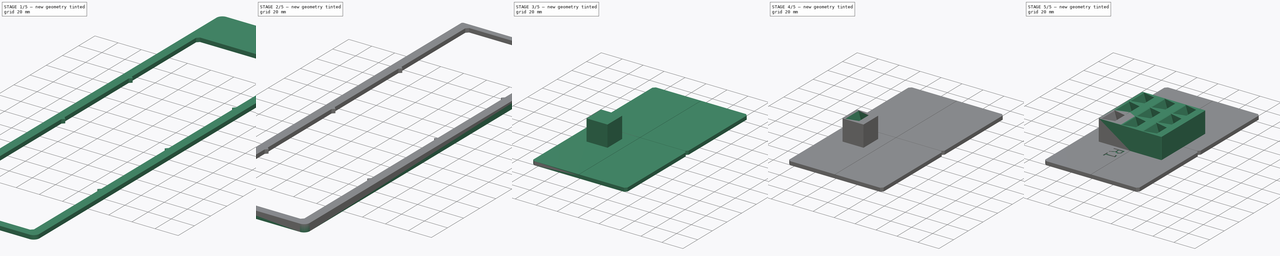
[diagram: build sequence overview — one tinted view per stage of 5, left to right]
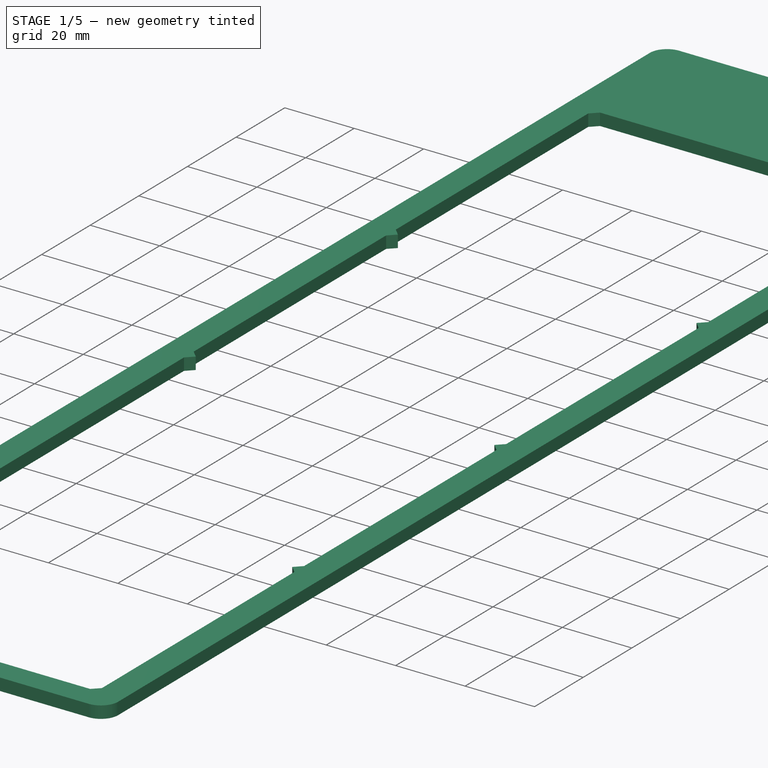
[diagram: stage 1 of 5 — iso view after this stage's code; geometry added in this stage tinted green]
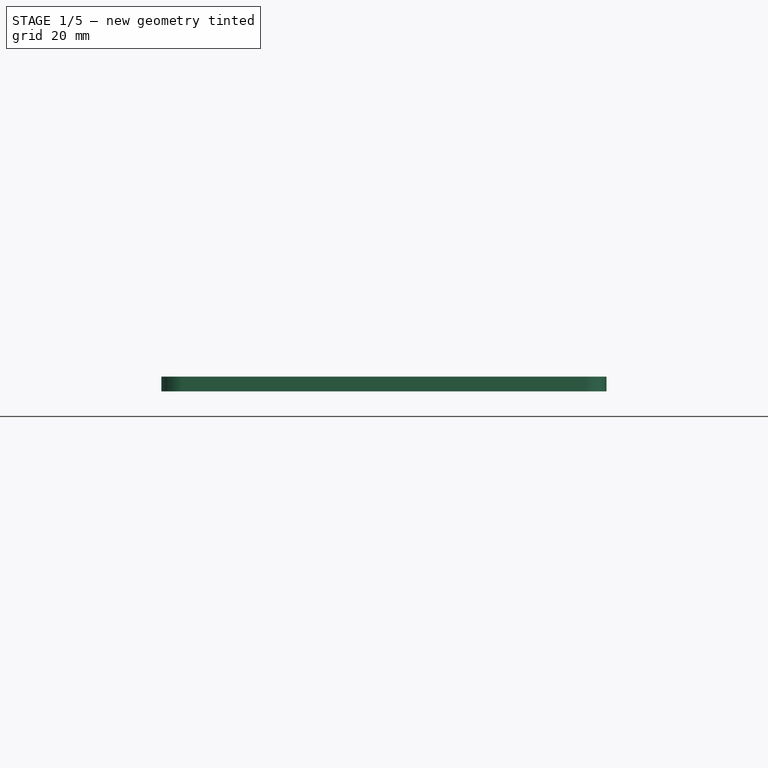
[diagram: stage 1 of 5 — front view after this stage's code; geometry added in this stage tinted green]
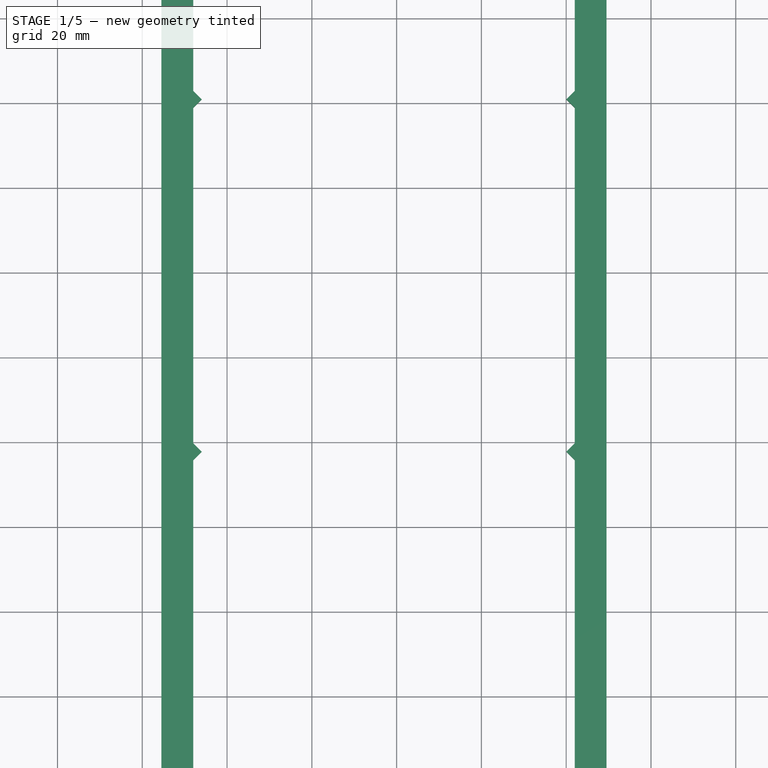
[diagram: stage 1 of 5 — top view after this stage's code; geometry added in this stage tinted green]
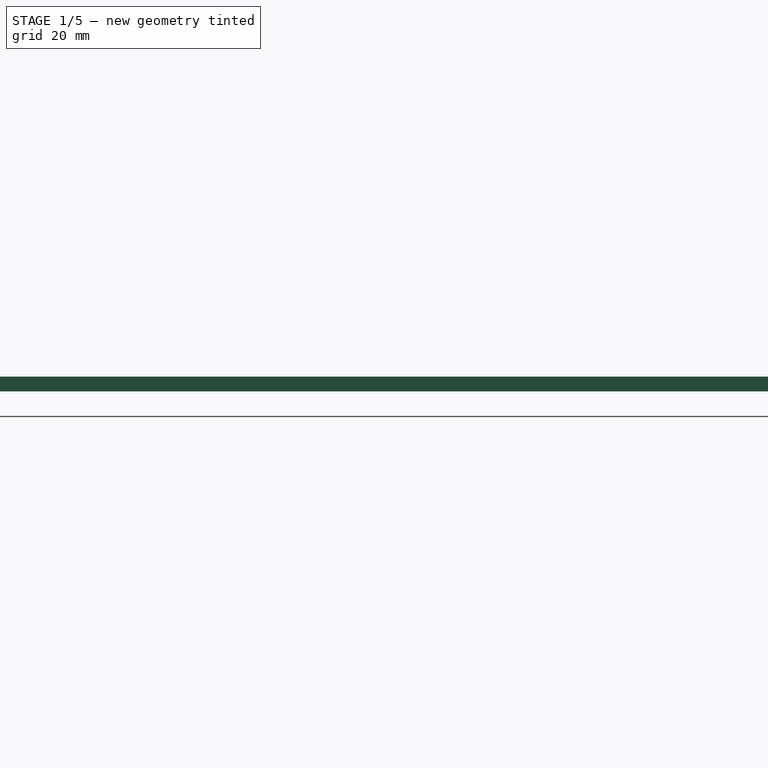
[diagram: stage 1 of 5 — right view after this stage's code; geometry added in this stage tinted green]
FCSTD DOCUMENT  (FreeCAD 1.1R44227 +568 (Git))
Label: MX-Front-print-rig
License: All rights reserved
LicenseURL: https://en.wikipedia.org/wiki/All_rights_reserved
objects: Sketcher::SketchObject×10, PartDesign::Pocket×5, PartDesign::Pad×4, PartDesign::Fillet×3, App::Point×2, PartDesign::Body×2, PartDesign::SubShapeBinder×1, Part::DatumPlane×1, Spreadsheet::Sheet×1, PartDesign::AdditiveLoft×1, PartDesign::Chamfer×1, PartDesign::LinearPattern×1, Part::Part2DObjectPython×1
note: 68 computed .brp shape members not serialized (recipe doc carries the construction recipe); baked Part::Feature solids carry a one-line shape summary decoded from their .brp

FEATURE [Sketcher::SketchObject] Sketch011
  ArcFitTolerance = 1e-06
  ExternalTypes = [0,0,0]
  FullyConstrained = true
  MakeInternals = false
  MapMode = 5
  Placement = pos=(0,0,-2) rot=(1,0,0;3.14159rad)
  _ExternalGeoVersion = 0
  sketch-geometry (4):
    g0: LineSegment StartX=24.522 StartY=-308.965 StartZ=0 EndX=24.522 EndY=-342.965 EndZ=0
    g1: LineSegment StartX=24.522 StartY=-342.965 StartZ=0 EndX=129.522 EndY=-342.965 EndZ=0
    g2: LineSegment StartX=129.522 StartY=-342.965 StartZ=0 EndX=129.522 EndY=-308.965 EndZ=0
    g3: LineSegment StartX=24.522 StartY=-308.965 StartZ=0 EndX=129.522 EndY=-308.965 EndZ=0
  constraints (10):
    c: Vertical(g0)
    c: Coincident(g0,g1)
    c: Vertical(g2)
    c: Coincident(g2,g-3)
    c: Coincident(g0,g-3)
    c: Horizontal(g0,g2)
    c: DistanceY(g2,g-4) = 5
    c: Coincident(g0,g3)
    c: Coincident(g1,g2)
    c: Coincident(g2,g3)
FEATURE [Sketcher::SketchObject] Sketch009
  ArcFitTolerance = 1e-06
  ExternalTypes = [0]
  FullyConstrained = false
  MakeInternals = false
  MapMode = 5
  _ExternalGeoVersion = 0
  sketch-geometry (4):
    g0: LineSegment StartX=24.522 StartY=342.965 StartZ=0 EndX=24.522 EndY=-35.535 EndZ=0
    g1: LineSegment StartX=24.522 StartY=-35.535 StartZ=0 EndX=129.522 EndY=-35.535 EndZ=0
    g2: LineSegment StartX=129.522 StartY=-35.535 StartZ=0 EndX=129.522 EndY=342.965 EndZ=0
    g3: LineSegment StartX=129.522 StartY=342.965 StartZ=0 EndX=24.522 EndY=342.965 EndZ=0
  constraints (10):
    c: Coincident(g0,g1)
    c: Coincident(g1,g2)
    c: Coincident(g2,g3)
    c: Coincident(g3,g0)
    c: Vertical(g0)
    c: Vertical(g2)
    c: Horizontal(g1)
    c: Horizontal(g3)
    c: Distance(g0,g2) = 105
    c: Distance(g1,g3) = 378.5
FEATURE [PartDesign::Pad] Pad
  Direction = (0,0,1)
  Length = 1.5
  Length2 = 2
  Profile = -> Sketch009
  ReferenceAxis = -> Sketch009 [N_Axis]
  SideType = 1
  Suppressed = false
  Type = 0
  Type2 = 0
FEATURE [Sketcher::SketchObject] Sketch010
  ArcFitTolerance = 1e-06
  AttachmentSupport = -> [Pad]
  ExternalGeometry = -> [Pad]
  ExternalTypes = [0,0,0,0]
  FullyConstrained = true
  MakeInternals = false
  MapMode = 5
  Placement = pos=(0,0,1.5) rot=(0,0,1;0rad)
  _ExternalGeoVersion = 0
  sketch-geometry (35):
    g0: LineSegment StartX=32.022 StartY=301.965 StartZ=0 EndX=32.022 EndY=222.84 EndZ=0
    g1: LineSegment StartX=34.022 StartY=-28.535 StartZ=0 EndX=120.022 EndY=-28.535 EndZ=0
    g2: LineSegment StartX=120.022 StartY=-28.535 StartZ=0 EndX=122.022 EndY=-26.535 EndZ=0
    g3: LineSegment StartX=120.022 StartY=303.965 StartZ=0 EndX=34.022 EndY=303.965 EndZ=0
    g4: GeomPoint [constr] X=77.022 Y=-35.535 Z=0
    g5: GeomPoint [constr] X=77.022 Y=342.965 Z=0
    g6: LineSegment [constr] StartX=77.022 StartY=342.965 StartZ=0 EndX=77.022 EndY=-35.535 EndZ=0
    g7: LineSegment StartX=32.022 StartY=222.84 StartZ=0 EndX=34.022 EndY=220.84 EndZ=0
    g8: LineSegment StartX=34.022 StartY=220.84 StartZ=0 EndX=32.022 EndY=218.84 EndZ=0
    g9: LineSegment StartX=32.022 StartY=135.715 StartZ=0 EndX=34.022 EndY=137.715 EndZ=0
    g10: LineSegment StartX=34.022 StartY=137.715 StartZ=0 EndX=32.022 EndY=139.715 EndZ=0
    g11: LineSegment StartX=32.022 StartY=56.59 StartZ=0 EndX=34.022 EndY=54.59 EndZ=0
    g12: LineSegment StartX=34.022 StartY=54.59 StartZ=0 EndX=32.022 EndY=52.59 EndZ=0
    g13: LineSegment StartX=122.022 StartY=52.59 StartZ=0 EndX=120.022 EndY=54.59 EndZ=0
    g14: LineSegment StartX=120.022 StartY=54.59 StartZ=0 EndX=122.022 EndY=56.59 EndZ=0
    g15: LineSegment StartX=122.022 StartY=139.715 StartZ=0 EndX=120.022 EndY=137.715 EndZ=0
    g16: LineSegment StartX=120.022 StartY=137.715 StartZ=0 EndX=122.022 EndY=135.715 EndZ=0
    g17: LineSegment StartX=122.022 StartY=222.84 StartZ=0 EndX=122.022 EndY=301.965 EndZ=0
    g18: LineSegment StartX=120.022 StartY=220.84 StartZ=0 EndX=122.022 EndY=222.84 EndZ=0
    g19: LineSegment StartX=122.022 StartY=218.84 StartZ=0 EndX=120.022 EndY=220.84 EndZ=0
    g20: LineSegment StartX=34.022 StartY=303.965 StartZ=0 EndX=32.022 EndY=301.965 EndZ=0
    g21: LineSegment StartX=122.022 StartY=301.965 StartZ=0 EndX=120.022 EndY=303.965 EndZ=0
    g22: LineSegment [constr] StartX=34.022 StartY=220.84 StartZ=0 EndX=120.022 EndY=220.84 EndZ=0
    g23: LineSegment [constr] StartX=32.022 StartY=135.715 StartZ=0 EndX=32.022 EndY=139.715 EndZ=0
    g24: LineSegment [constr] StartX=32.022 StartY=222.84 StartZ=0 EndX=32.022 EndY=218.84 EndZ=0
    g25: LineSegment [constr] StartX=32.022 StartY=56.59 StartZ=0 EndX=32.022 EndY=52.59 EndZ=0
    g26: LineSegment [constr] StartX=34.022 StartY=54.59 StartZ=0 EndX=120.022 EndY=54.59 EndZ=0
    g27: LineSegment StartX=32.022 StartY=-26.535 StartZ=0 EndX=34.022 EndY=-28.535 EndZ=0
    g28: LineSegment [constr] StartX=34.022 StartY=137.715 StartZ=0 EndX=120.022 EndY=137.715 EndZ=0
    g29: LineSegment StartX=32.022 StartY=218.84 StartZ=0 EndX=32.022 EndY=139.715 EndZ=0
    g30: LineSegment StartX=122.022 StartY=218.84 StartZ=0 EndX=122.022 EndY=139.715 EndZ=0
    g31: LineSegment StartX=32.022 StartY=135.715 StartZ=0 EndX=32.022 EndY=56.59 EndZ=0
    g32: LineSegment StartX=122.022 StartY=135.715 StartZ=0 EndX=122.022 EndY=56.59 EndZ=0
    g33: LineSegment StartX=32.022 StartY=52.59 StartZ=0 EndX=32.022 EndY=-26.535 EndZ=0
    g34: LineSegment StartX=122.022 StartY=52.59 StartZ=0 EndX=122.022 EndY=-26.535 EndZ=0
  constraints (87):
    c: Coincident(g27,g1)
    c: Coincident(g1,g2)
    c: Coincident(g21,g3)
    c: Coincident(g20,g0)
    c: DistanceY(g2,g21) = 332.5
    c: Symmetric(g-4,g-4,g4)
    c: Symmetric(g-3,g-3,g5)
    c: Coincident(g6,g5)
    c: Coincident(g6,g4)
    c: Symmetric(g27,g1,g6)
    c: Vertical(g0)
    c: Coincident(g0,g7)
    c: Coincident(g7,g8)
    c: Coincident(g9,g10)
    c: Coincident(g11,g12)
    c: Coincident(g13,g14)
    c: Coincident(g15,g16)
    c: Coincident(g18,g17)
    c: Coincident(g19,g18)
    c: Vertical(g16,g15)
    c: Vertical(g0,g8)
    c: Vertical(g17,g19)
    c: Vertical(g11,g12)
    c: Vertical(g14,g13)
    c: Horizontal(g9,g16)
    c: Horizontal(g15,g10)
    c: Vertical(g9,g11)
    c: Vertical(g15,g13)
    c: Vertical(g18,g15)
    c: Vertical(g7,g9)
    c: Horizontal(g0,g17)
    c: Horizontal(g8,g19)
    c: Horizontal(g11,g14)
    c: Horizontal(g12,g13)
    c: DistanceX(g9,g9) = 2
    c: Symmetric(g9,g15,g6)
    c: Coincident(g3,g20)
    c: Angle(g20,g0) = 0.785398
    c: Vertical(g9,g3)
    c: Vertical(g17)
    c: Coincident(g17,g21)
    c: Symmetric(g3,g3,g6)
    c: Horizontal(g17,g0)
    c: Coincident(g22,g7)
    c: Coincident(g22,g18)
    c: Symmetric(g0,g8,g22)
    c: Coincident(g23,g9)
    c: Coincident(g23,g10)
    c: Coincident(g24,g0)
    c: Coincident(g24,g8)
    c: Equal(g24,g23)
    c: Coincident(g25,g11)
    c: Coincident(g25,g12)
    c: Coincident(g26,g11)
    c: Coincident(g26,g13)
    c: Equal(g25,g23)
    c: DistanceX(g27,g2) = 90
    c: Symmetric(g27,g2,g6)
    c: Vertical(g11,g1)
    c: Coincident(g28,g9)
    c: Coincident(g28,g15)
    c: Symmetric(g9,g10,g28)
    c: DistanceY(g-4,g1) = 7
    c: Coincident(g29,g8)
    c: Coincident(g29,g10)
    c: Vertical(g29)
    c: Coincident(g30,g19)
    c: Coincident(g30,g15)
    c: Vertical(g30)
    c: Angle(g29,g10) = 0.785398
    c: Equal(g0,g29)
    c: Coincident(g31,g9)
    c: Coincident(g31,g11)
    c: Vertical(g31)
    c: Coincident(g32,g16)
    c: Coincident(g32,g14)
    c: Vertical(g32)
    c: Symmetric(g11,g12,g26)
    c: Equal(g29,g31)
    c: Coincident(g33,g12)
    c: Coincident(g33,g27)
    c: Vertical(g33)
    c: Coincident(g34,g13)
    c: Coincident(g34,g2)
    c: Vertical(g34)
    c: Equal(g31,g33)
    c: Angle(g33,g27) = 0.785398
FEATURE [PartDesign::Pocket] Pocket019
  BaseFeature = -> Pad
  Direction = (0,0,-1)
  Length = 5
  Length2 = 5
  Profile = -> Sketch010
  ReferenceAxis = -> Sketch010 [N_Axis]
  SideType = 0
  Suppressed = false
  Type = 1
  Type2 = 0
FEATURE [PartDesign::Fillet] Fillet
  Base = -> Pocket019 [Edge8,Edge2,Edge1,Edge5]
  BaseFeature = -> Pocket019
  Radius = 5
  SupportTransform = false
  Suppressed = false
  UseAllEdges = false
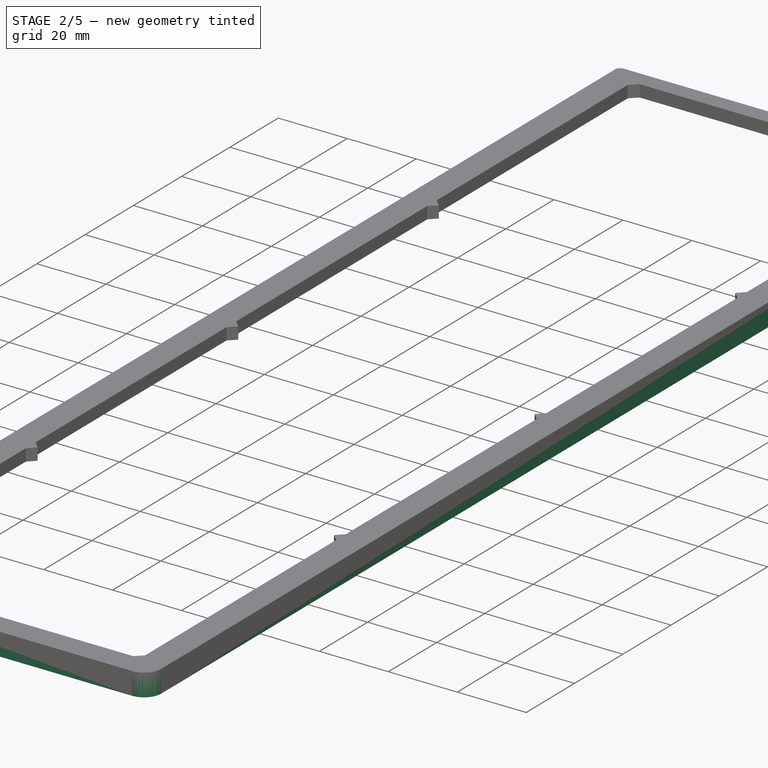
[diagram: stage 2 of 5 — iso view after this stage's code; geometry added in this stage tinted green]
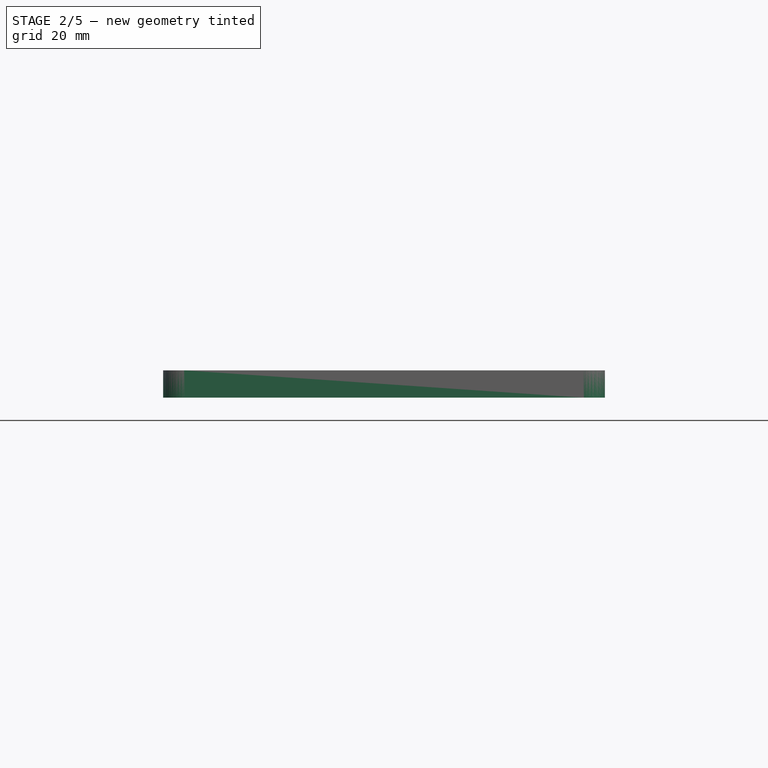
[diagram: stage 2 of 5 — front view after this stage's code; geometry added in this stage tinted green]
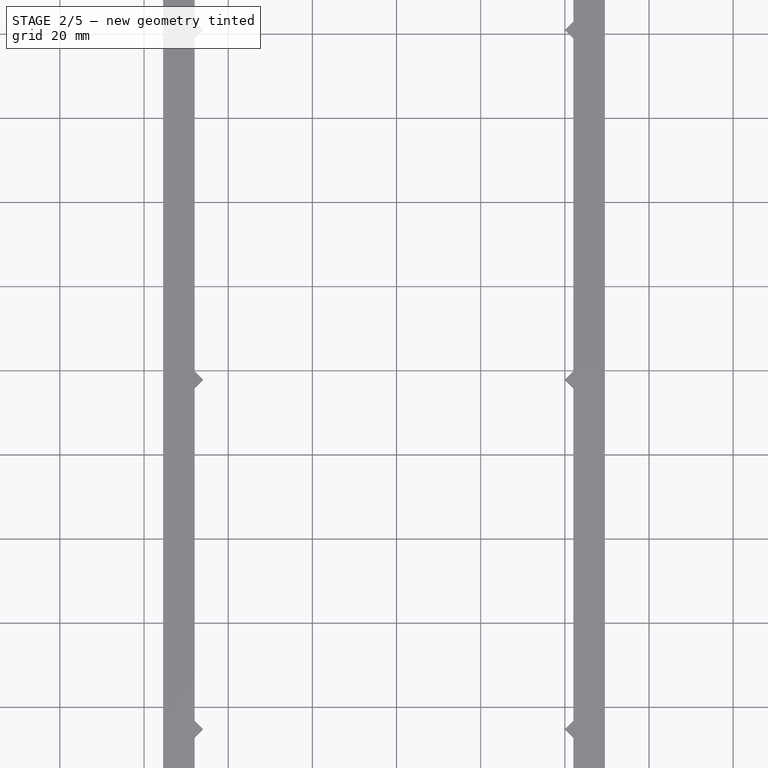
[diagram: stage 2 of 5 — top view after this stage's code; geometry added in this stage tinted green]
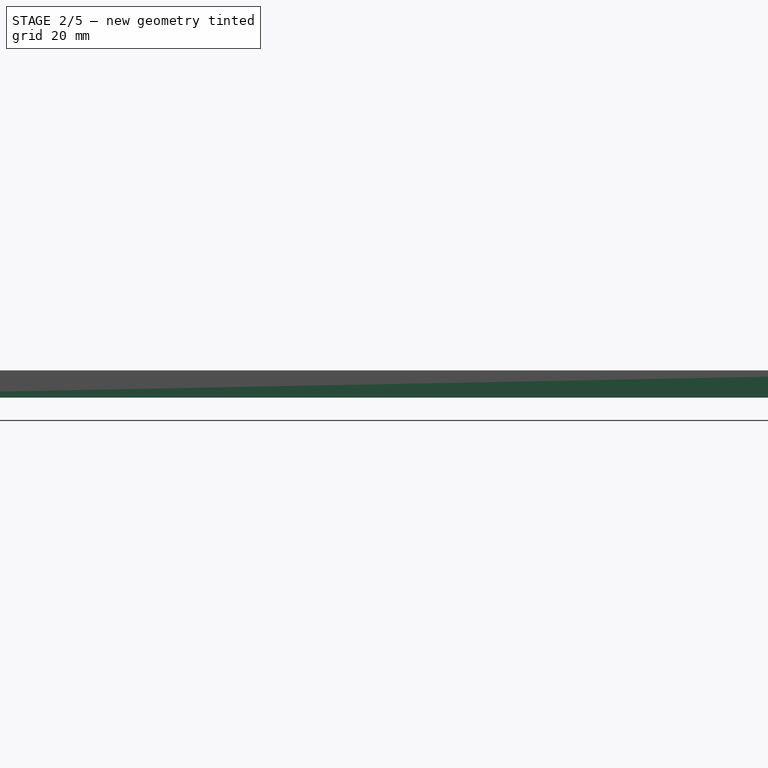
[diagram: stage 2 of 5 — right view after this stage's code; geometry added in this stage tinted green]
FEATURE [Sketcher::SketchObject] Sketch028
  ArcFitTolerance = 1e-06
  AttachmentSupport = -> [Fillet]
  ExternalGeometry = -> [Fillet]
  ExternalTypes = [0,0,0,0,0,0,0,0]
  FullyConstrained = true
  MakeInternals = false
  MapMode = 5
  Placement = pos=(0,0,-2) rot=(1,0,0;3.14159rad)
  _ExternalGeoVersion = 0
  sketch-geometry (8):
    g0: ArcOfCircle CenterX=29.522 CenterY=30.535 CenterZ=0 NormalX=0 NormalY=0 NormalZ=1 AngleXU=0 Radius=3 StartAngle=1.5708 EndAngle=3.14159
    g1: ArcOfCircle CenterX=124.522 CenterY=30.535 CenterZ=0 NormalX=0 NormalY=0 NormalZ=1 AngleXU=0 Radius=3 StartAngle=3e-16 EndAngle=1.5708
    g2: ArcOfCircle CenterX=124.522 CenterY=-337.965 CenterZ=0 NormalX=0 NormalY=0 NormalZ=1 AngleXU=0 Radius=3 StartAngle=4.71239 EndAngle=6.28319
    g3: ArcOfCircle CenterX=29.522 CenterY=-337.965 CenterZ=0 NormalX=0 NormalY=0 NormalZ=1 AngleXU=0 Radius=3 StartAngle=3.14159 EndAngle=4.71239
    g4: LineSegment StartX=29.522 StartY=33.535 StartZ=0 EndX=124.522 EndY=33.535 EndZ=0
    g5: LineSegment StartX=127.522 StartY=30.535 StartZ=0 EndX=127.522 EndY=-337.965 EndZ=0
    g6: LineSegment StartX=124.522 StartY=-340.965 StartZ=0 EndX=29.522 EndY=-340.965 EndZ=0
    g7: LineSegment StartX=26.522 StartY=-337.965 StartZ=0 EndX=26.522 EndY=30.535 EndZ=0
  constraints (24):
    c: Coincident(g0,g-3)
    c: Coincident(g1,g-5)
    c: Coincident(g2,g-7)
    c: Coincident(g3,g-9)
    c: Horizontal(g2,g-7)
    c: Vertical(g2,g-8)
    c: Vertical(g3,g-9)
    c: Horizontal(g-10,g3)
    c: Horizontal(g-10,g0)
    c: Vertical(g0,g-4)
    c: Vertical(g-5,g1)
    c: Horizontal(g1,g-6)
    c: Coincident(g4,g0)
    c: Coincident(g4,g1)
    c: Horizontal(g4)
    c: Coincident(g5,g1)
    c: Coincident(g5,g2)
    c: Vertical(g5)
    c: Coincident(g6,g2)
    c: Coincident(g6,g3)
    c: Horizontal(g6)
    c: Coincident(g7,g3)
    c: Coincident(g7,g0)
    c: DistanceY(g0,g-4) = 2
FEATURE [PartDesign::Pad] Pad008
  BaseFeature = -> Fillet
  Direction = (0,0,-1)
  Length = 3
  Length2 = 10
  Profile = -> Sketch028
  ReferenceAxis = -> Sketch028 [N_Axis]
  SideType = 0
  Suppressed = false
  Type = 0
  Type2 = 0
FEATURE [PartDesign::Pocket] Pocket020
  BaseFeature = -> Pad008
  Direction = (0,1e-16,1)
  Length = 5
  Length2 = 5
  Profile = -> Sketch011
  ReferenceAxis = -> Sketch011 [N_Axis]
  Refine = true
  SideType = 2
  Suppressed = false
  Type = 1
  Type2 = 0
FEATURE [PartDesign::Fillet] Fillet001
  Base = -> Pocket020 [Edge33,Edge39]
  BaseFeature = -> Pocket020
  Radius = 1.5
  SupportTransform = false
  Suppressed = false
  UseAllEdges = false
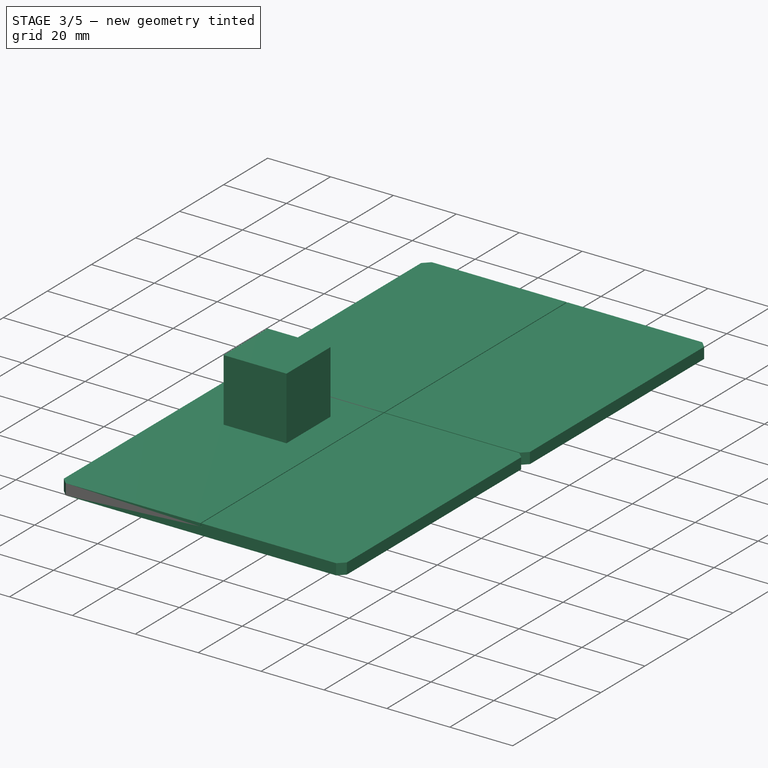
[diagram: stage 3 of 5 — iso view after this stage's code; geometry added in this stage tinted green]
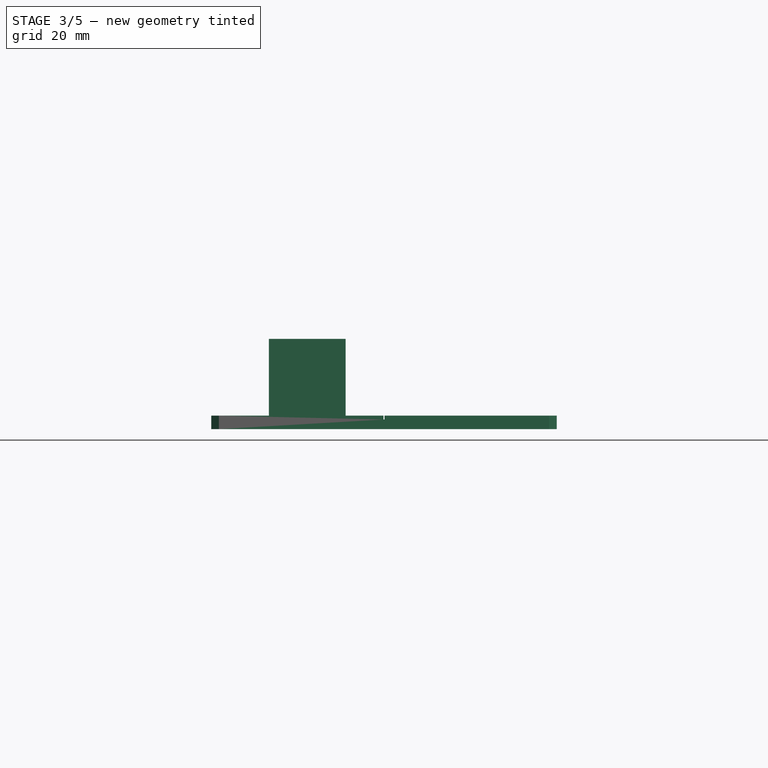
[diagram: stage 3 of 5 — front view after this stage's code; geometry added in this stage tinted green]
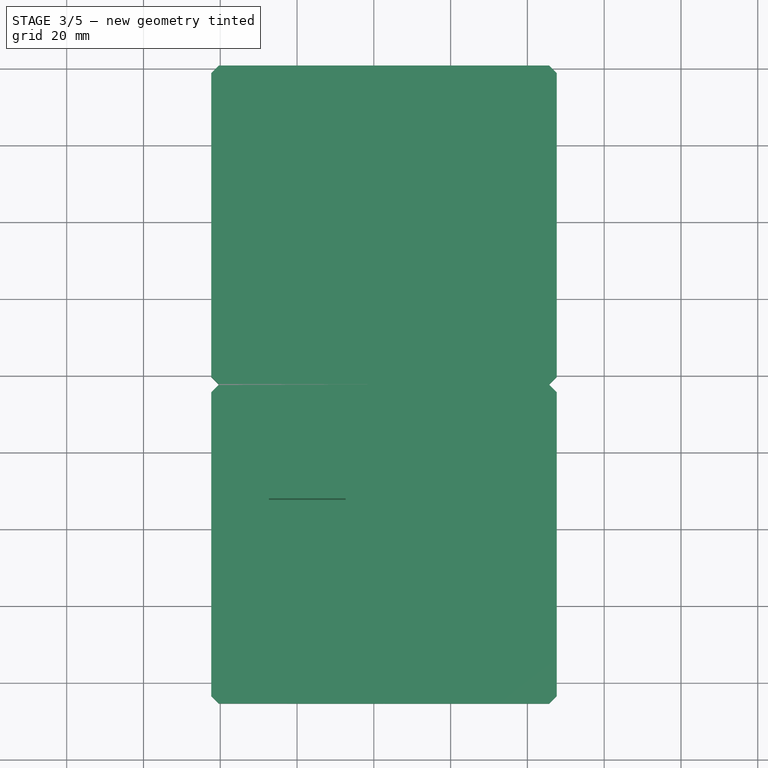
[diagram: stage 3 of 5 — top view after this stage's code; geometry added in this stage tinted green]
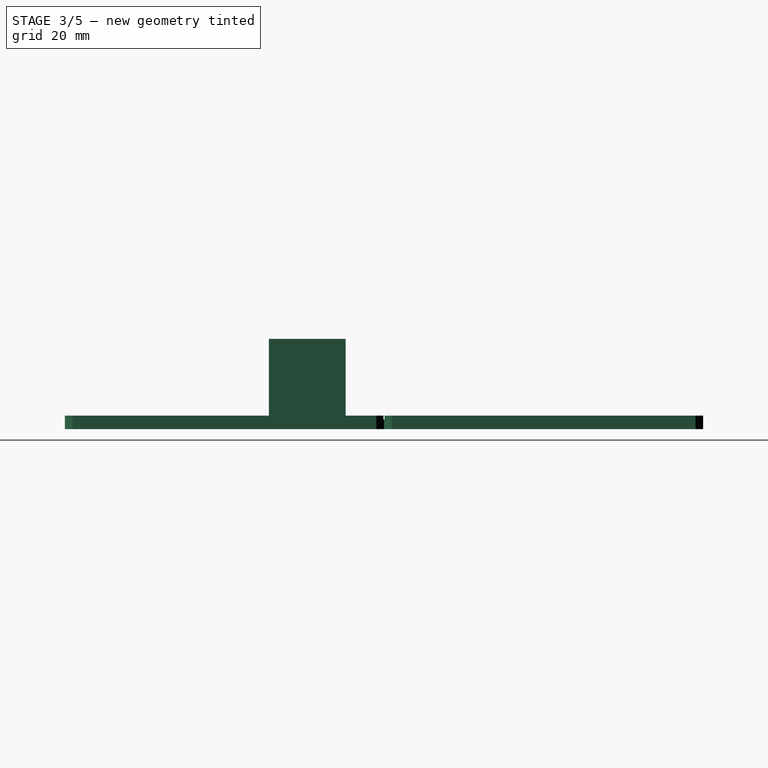
[diagram: stage 3 of 5 — right view after this stage's code; geometry added in this stage tinted green]
FEATURE [App::Point] Origin003
  Role = Origin
FEATURE [PartDesign::Body] Body001  label="Centering device for mini plate"
  AllowCompound = false
  Group = -> [Sketch009,Pad,Sketch010,Sketch011,Pocket019,Fillet,Sketch028,Pad008,Pocket020,Fillet001]
  Origin = -> Origin002
  Placement = pos=(139.67,0,1.71e-14) rot=(0,1,0;3.14159rad)
  Tip = -> Fillet001
FEATURE [PartDesign::SubShapeBinder] Binder
  BindCopyOnChange = 0
  BindMode = 0
  ClaimChildren = false
  Context = -> Body008 [Binder.]
  Fuse = false
  MakeFace = true
  OffsetFill = false
  OffsetIntersection = false
  OffsetJoinType = 0
  OffsetOpenResult = false
  PartialLoad = false
  Refine = true
  Relative = true
  Support = -> [Body001]
  _Version = 2
FEATURE [Sketcher::SketchObject] Sketch030
  ArcFitTolerance = 1e-06
  AttachmentSupport = -> [Binder]
  ExternalGeometry = -> [Binder]
  ExternalTypes = [0,0,0,0,0,0,0,0,0,0,0,0]
  FullyConstrained = true
  MakeInternals = false
  MapMode = 5
  Placement = pos=(0,0,-1.5) rot=(1,0,0;3.14159rad)
  _ExternalGeoVersion = 0
  sketch-geometry (2):
    g0: LineSegment StartX=19.648 StartY=-220.84 StartZ=0 EndX=105.648 EndY=-220.84 EndZ=0
    g1: LineSegment StartX=105.648 StartY=-54.59 StartZ=0 EndX=19.648 EndY=-54.59 EndZ=0
  constraints (4):
    c: Coincident(g0,g-3)
    c: Coincident(g0,g-4)
    c: Coincident(g1,g-11)
    c: Coincident(g1,g-12)
FEATURE [PartDesign::Pad] Pad011
  Direction = (0,0,-1)
  Length = 10
  Length2 = 10
  Profile = -> Sketch030
  ReferenceAxis = -> Sketch030 [N_Axis]
  SideType = 0
  Suppressed = false
  Type = 3
  Type2 = 0
  UpToFace = -> Binder [Face39]
FEATURE [Sketcher::SketchObject] Sketch034
  ArcFitTolerance = 1e-06
  AttachmentSupport = -> [Pad011]
  ExternalTypes = [0,0]
  FullyConstrained = true
  MakeInternals = false
  MapMode = 5
  Placement = pos=(-2e-16,0,2) rot=(0,0,1;0rad)
  _ExternalGeoVersion = 0
  sketch-geometry (14):
    g0: LineSegment [constr] StartX=62.648 StartY=220.84 StartZ=0 EndX=62.648 EndY=54.59 EndZ=0
    g1: LineSegment [constr] StartX=19.648 StartY=137.715 StartZ=0 EndX=105.648 EndY=137.715 EndZ=0
    g2: LineSegment StartX=19.523 StartY=137.84 StartZ=0 EndX=62.523 EndY=137.84 EndZ=0
    g3: LineSegment StartX=62.523 StartY=137.84 StartZ=0 EndX=62.523 EndY=220.84 EndZ=0
    g4: LineSegment StartX=105.773 StartY=137.84 StartZ=0 EndX=62.773 EndY=137.84 EndZ=0
    g5: LineSegment StartX=62.773 StartY=137.84 StartZ=0 EndX=62.773 EndY=220.84 EndZ=0
    g6: LineSegment StartX=19.523 StartY=137.59 StartZ=0 EndX=62.523 EndY=137.59 EndZ=0
    g7: LineSegment StartX=62.523 StartY=137.59 StartZ=0 EndX=62.523 EndY=54.59 EndZ=0
    g8: LineSegment StartX=62.773 StartY=137.59 StartZ=0 EndX=62.773 EndY=54.59 EndZ=0
    g9: LineSegment StartX=105.773 StartY=137.59 StartZ=0 EndX=62.773 EndY=137.59 EndZ=0
    g10: LineSegment StartX=62.523 StartY=220.84 StartZ=0 EndX=62.773 EndY=220.84 EndZ=0
    g11: LineSegment StartX=105.773 StartY=137.84 StartZ=0 EndX=105.773 EndY=137.59 EndZ=0
    g12: LineSegment StartX=62.773 StartY=54.59 StartZ=0 EndX=62.523 EndY=54.59 EndZ=0
    g13: LineSegment StartX=19.523 StartY=137.59 StartZ=0 EndX=19.523 EndY=137.84 EndZ=0
  constraints (37):
    c: Symmetric(g0,g0,g1)
    c: Horizontal(g2)
    c: Coincident(g3,g2)
    c: Vertical(g3)
    c: Coincident(g5,g4)
    c: Coincident(g7,g6)
    c: Coincident(g8,g9)
    c: Coincident(g10,g3)
    c: Coincident(g10,g5)
    c: Horizontal(g10)
    c: Coincident(g11,g4)
    c: Coincident(g11,g9)
    c: Vertical(g11)
    c: Coincident(g12,g8)
    c: Coincident(g12,g7)
    c: Horizontal(g12)
    c: Coincident(g13,g6)
    c: Coincident(g13,g2)
    c: Equal(g13,g10)
    c: Vertical(g6,g2)
    c: Vertical(g4,g8)
    c: Horizontal(g2,g4)
    c: Horizontal(g6,g8)
    c: Vertical(g7)
    c: Horizontal(g6)
    c: Horizontal(g9)
    c: Symmetric(g2,g6,g1)
    c: Vertical(g5)
    c: Vertical(g8)
    c: Symmetric(g7,g8,g0)
    c: Symmetric(g4,g2,g0)
    c: DistanceX(g10,g10) = 0.25
    c: Symmetric(g-3,g-3,g0)
    c: Symmetric(g3,g5,g0)
    c: Coincident(g1,g-4)
    c: PointOnObject(g2,g-4)
    c: Vertical(g-3,g1)
FEATURE [PartDesign::Pocket] Pocket
  BaseFeature = -> Pad011
  Direction = (0,0,-1)
  Length = 1
  Length2 = 5
  Profile = -> Sketch034
  ReferenceAxis = -> Sketch034 [N_Axis]
  SideType = 0
  Suppressed = false
  Type = 0
  Type2 = 0
FEATURE [App::Point] Origin017  label="Origin022"
  Role = Origin
FEATURE [Sketcher::SketchObject] Sketch
  ArcFitTolerance = 1e-06
  AttachmentSupport = -> [Pocket]
  ExternalGeometry = -> [Pocket]
  ExternalTypes = [0,0]
  FullyConstrained = true
  MakeInternals = false
  MapMode = 5
  Placement = pos=(-2e-16,0,2) rot=(0,0,1;0rad)
  _ExternalGeoVersion = 1
  sketch-geometry (5):
    g0: LineSegment StartX=52.648 StartY=127.715 StartZ=0 EndX=32.648 EndY=127.715 EndZ=0
    g1: LineSegment StartX=32.648 StartY=127.715 StartZ=0 EndX=32.648 EndY=107.715 EndZ=0
    g2: LineSegment StartX=32.648 StartY=107.715 StartZ=0 EndX=52.648 EndY=107.715 EndZ=0
    g3: LineSegment StartX=52.648 StartY=107.715 StartZ=0 EndX=52.648 EndY=127.715 EndZ=0
    g4: GeomPoint [constr] X=62.648 Y=137.715 Z=0
  constraints (13):
    c: Coincident(g0,g1)
    c: Coincident(g1,g2)
    c: Coincident(g2,g3)
    c: Coincident(g3,g0)
    c: Horizontal(g0)
    c: Horizontal(g2)
    c: Vertical(g1)
    c: Vertical(g3)
    c: Distance(g1,g3) = 20
    c: Distance(g0,g2) = 20
    c: Symmetric(g-3,g-4,g4)
    c: DistanceY(g0,g4) = 10
    c: DistanceX(g0,g4) = 10
FEATURE [PartDesign::Pad] Pad012
  BaseFeature = -> Pocket
  Direction = (0,0,1)
  Length = 20
  Length2 = 10
  Profile = -> Sketch
  ReferenceAxis = -> Sketch [N_Axis]
  Refine = true
  SideType = 0
  Suppressed = false
  Type = 0
  Type2 = 0
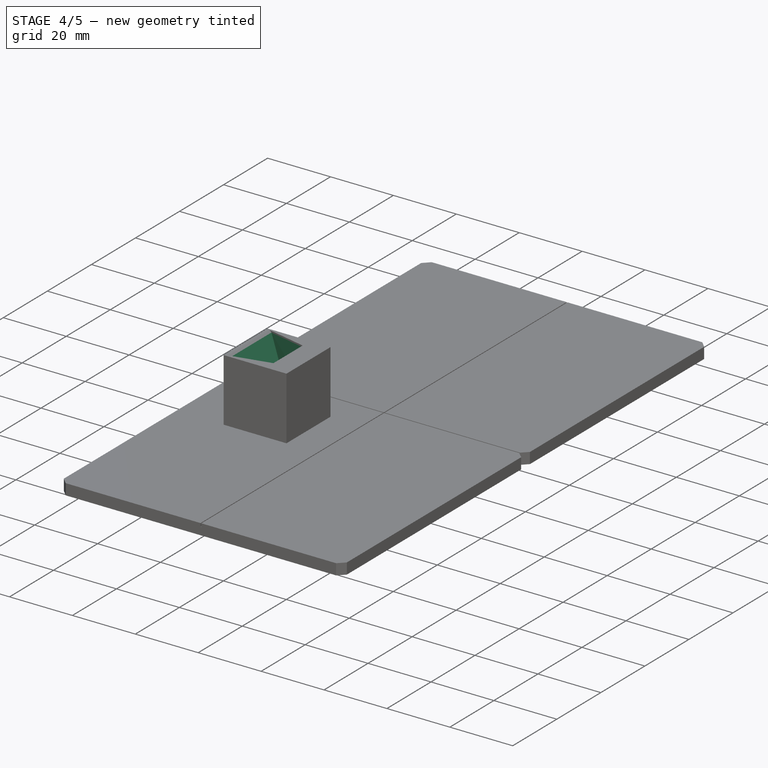
[diagram: stage 4 of 5 — iso view after this stage's code; geometry added in this stage tinted green]
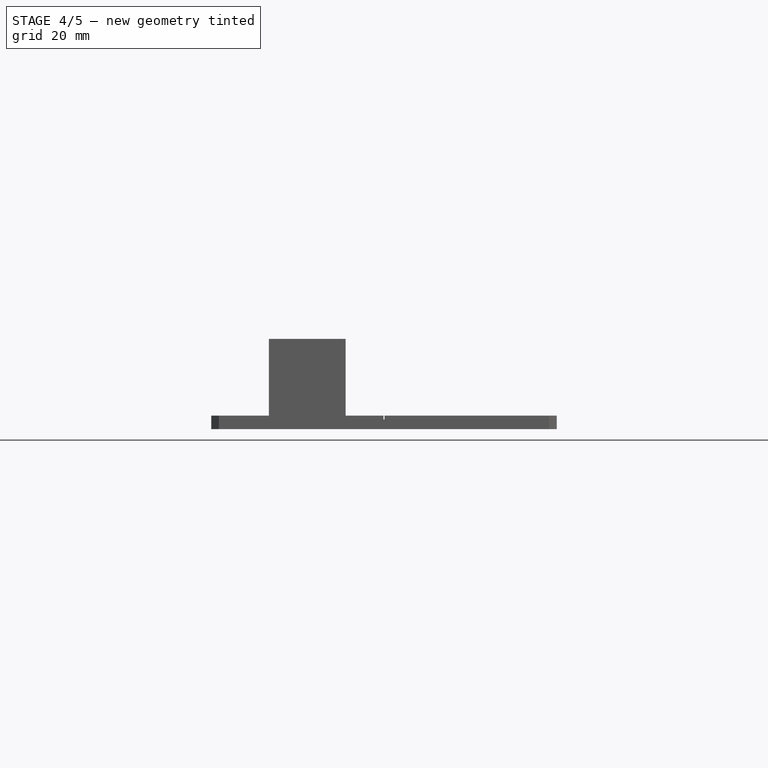
[diagram: stage 4 of 5 — front view after this stage's code; geometry added in this stage tinted green]
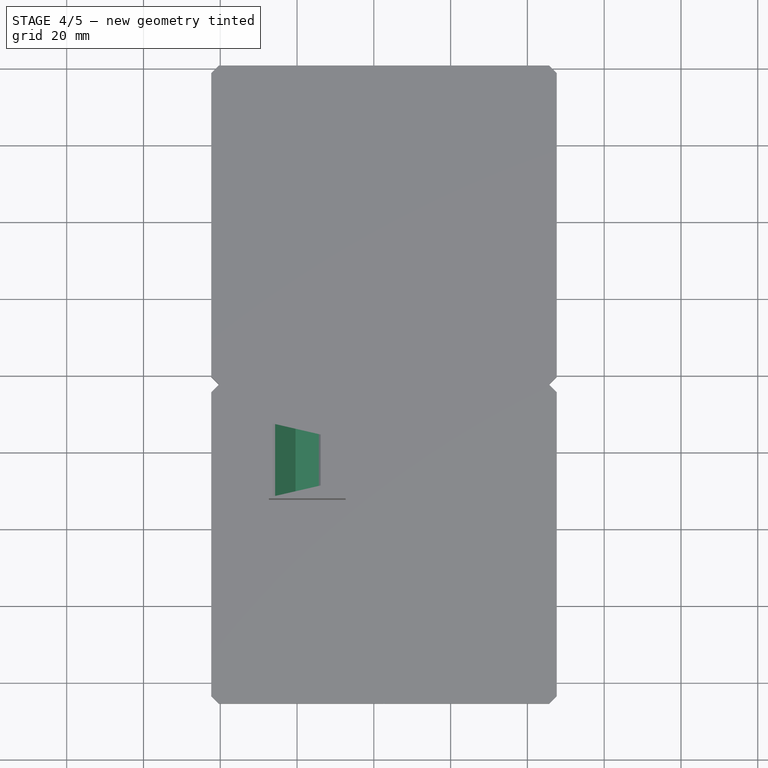
[diagram: stage 4 of 5 — top view after this stage's code; geometry added in this stage tinted green]
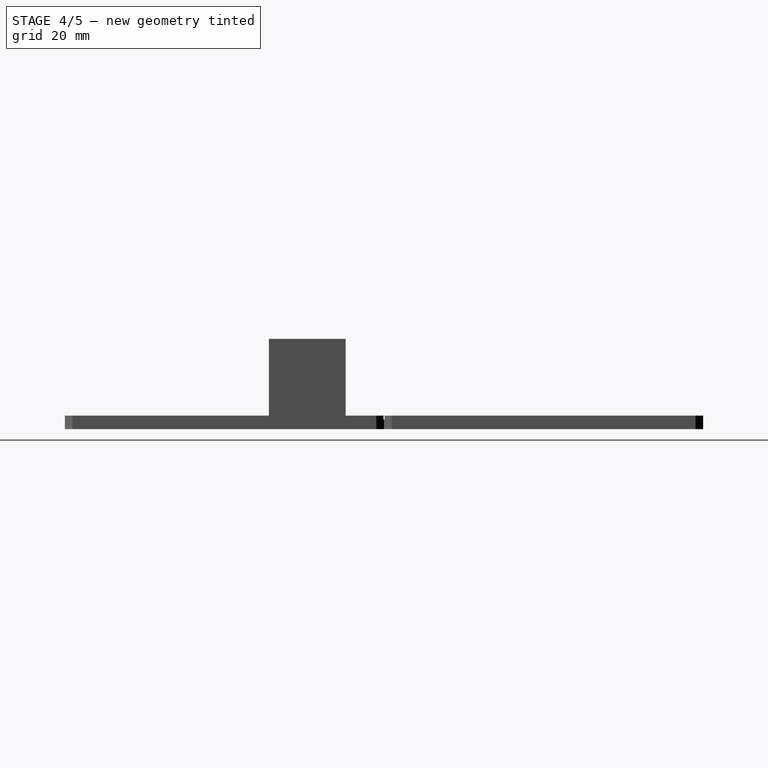
[diagram: stage 4 of 5 — right view after this stage's code; geometry added in this stage tinted green]
FEATURE [Part::DatumPlane] DatumPlane  label="Mid plane"
  AttachmentSupport = -> [Pad012]
  MapMode = 45
  Placement = pos=(42.648,117.715,12) rot=(0,0.707107,0.707107;3.14159rad)
FEATURE [Sketcher::SketchObject] Sketch035
  ArcFitTolerance = 1e-06
  AttachmentSupport = -> [DatumPlane]
  ExternalGeometry = -> [Pad012]
  ExternalTypes = [0]
  FullyConstrained = true
  MakeInternals = false
  MapMode = 5
  Placement = pos=(42.648,117.715,12) rot=(0,0.707107,0.707107;3.14159rad)
  _ExternalGeoVersion = 1
  expr: Constraints[6] = <<Data>>.front
  expr: Constraints[7] = <<Data>>.back
  sketch-geometry (6):
    g0: LineSegment StartX=8.5 StartY=10 StartZ=0 EndX=-3 EndY=10 EndZ=0
    g1: LineSegment StartX=-3 StartY=10 StartZ=0 EndX=-4.41283 EndY=-4.17979 EndZ=0
    g2: LineSegment StartX=-4.41283 StartY=-4.17979 StartZ=0 EndX=3.05608 EndY=-7.31434 EndZ=0
    g3: LineSegment StartX=3.05608 StartY=-7.31434 StartZ=0 EndX=8.5 EndY=10 EndZ=0
    g4: LineSegment [constr] StartX=3.05608 StartY=-7.31434 StartZ=0 EndX=-10 EndY=-3.20929 EndZ=0
    g5: LineSegment [constr] StartX=-4.41283 StartY=-4.17979 StartZ=0 EndX=-4.63778 EndY=-4.89526 EndZ=0
  constraints (18):
    c: PointOnObject(g0,g-3)
    c: PointOnObject(g0,g-3)
    c: Coincident(g0,g1)
    c: Coincident(g1,g2)
    c: Coincident(g2,g3)
    c: Coincident(g3,g0)
    c: DistanceX(g0,g0) = 11.5
    c: Distance(g2) = 8.1
    c: Distance(g3) = 18.15
    c: Distance(g1) = 14.25
    c: DistanceX(g-3,g0) = 7
    c: Coincident(g4,g2)
    c: Perpendicular(g4,g3)
    c: Vertical(g4,g-3)
    c: Coincident(g5,g1)
    c: PointOnObject(g5,g4)
    c: Perpendicular(g5,g4)
    c: Distance(g5) = 0.75
FEATURE [Spreadsheet::Sheet] Spreadsheet  label="Data"
  cells = A1='row; B1='back; C1='front; A2(rowName)==hiddenref(Body008.Row.String); B2(back)==.B3; C2(front)==.C3; A3='R1; B3=8.1; C3=11.5; A4='R2; B4=7.9; C4=10.2; A5='R3; B5=9.6; C5=11.25; A6='R4; B6=12.25; C6=12.25
  expr: .cells.Bind.B2.C2 = tuple(.cells; <<B>> + str(hiddenref(Body008.Row) + 3); <<C>> + str(hiddenref(Body008.Row) + 3))
FEATURE [PartDesign::Pocket] Pocket021
  BaseFeature = -> Pad012
  Direction = (0,-1,2e-16)
  Length = 18.8
  Length2 = 5
  Profile = -> Sketch035
  ReferenceAxis = -> Sketch035 [N_Axis]
  Refine = true
  SideType = 2
  Suppressed = false
  Type = 0
  Type2 = 0
FEATURE [Sketcher::SketchObject] Sketch036
  ArcFitTolerance = 1e-06
  AttachmentSupport = -> [Pad012]
  ExternalGeometry = -> [Pocket021]
  ExternalTypes = [0,0]
  FullyConstrained = true
  MakeInternals = false
  MapMode = 5
  Placement = pos=(0,0,22) rot=(0,0,1;0rad)
  _ExternalGeoVersion = 1
  sketch-geometry (5):
    g0: LineSegment [constr] StartX=45.648 StartY=127.115 StartZ=0 EndX=45.648 EndY=108.315 EndZ=0
    g1: LineSegment StartX=45.648 StartY=127.115 StartZ=0 EndX=45.648 EndY=124.465 EndZ=0
    g2: LineSegment StartX=45.648 StartY=124.465 StartZ=0 EndX=34.148 EndY=127.115 EndZ=0
    g3: LineSegment StartX=45.648 StartY=108.315 StartZ=0 EndX=45.648 EndY=110.965 EndZ=0
    g4: LineSegment StartX=45.648 StartY=110.965 StartZ=0 EndX=34.148 EndY=108.315 EndZ=0
  constraints (12):
    c: Coincident(g0,g-3)
    c: Coincident(g0,g-4)
    c: Coincident(g1,g0)
    c: PointOnObject(g1,g0)
    c: Coincident(g2,g1)
    c: Coincident(g2,g-3)
    c: Coincident(g3,g0)
    c: PointOnObject(g3,g0)
    c: Coincident(g4,g3)
    c: Coincident(g4,g-4)
    c: Equal(g1,g3)
    c: DistanceY(g1,g1) = 2.65
FEATURE [Sketcher::SketchObject] Sketch037
  ArcFitTolerance = 1e-06
  AttachmentSupport = -> [Pocket021]
  ExternalGeometry = -> [Pocket021]
  ExternalTypes = [0,0]
  FullyConstrained = true
  MakeInternals = false
  MapMode = 5
  Placement = pos=(4.25708,-2.3e-15,-10.1436) rot=(0,-1,0;0.397355rad)
  _ExternalGeoVersion = 1
  sketch-geometry (5):
    g0: LineSegment [constr] StartX=46.4205 StartY=127.115 StartZ=0 EndX=46.4205 EndY=108.315 EndZ=0
    g1: LineSegment StartX=46.4205 StartY=127.115 StartZ=0 EndX=46.4205 EndY=124.465 EndZ=0
    g2: LineSegment StartX=46.4205 StartY=124.465 StartZ=0 EndX=38.3205 EndY=127.115 EndZ=0
    g3: LineSegment StartX=46.4205 StartY=108.315 StartZ=0 EndX=46.4205 EndY=110.965 EndZ=0
    g4: LineSegment StartX=46.4205 StartY=110.965 StartZ=0 EndX=38.3205 EndY=108.315 EndZ=0
  constraints (12):
    c: Coincident(g0,g-3)
    c: Coincident(g0,g-4)
    c: Coincident(g0,g1)
    c: PointOnObject(g1,g0)
    c: Coincident(g1,g2)
    c: Coincident(g2,g-3)
    c: Coincident(g0,g3)
    c: PointOnObject(g3,g0)
    c: Coincident(g3,g4)
    c: Coincident(g4,g-4)
    c: Equal(g1,g3)
    c: DistanceY(g1,g1) = 2.65
FEATURE [PartDesign::AdditiveLoft] AdditiveLoft
  BaseFeature = -> Pocket021
  Closed = false
  Profile = -> Sketch036
  Refine = true
  Ruled = false
  Sections = -> [Sketch037]
  Suppressed = false
FEATURE [PartDesign::Chamfer] Chamfer
  Angle = 45
  Base = -> AdditiveLoft [Edge91,Edge93]
  BaseFeature = -> AdditiveLoft
  ChamferType = 0
  FlipDirection = false
  Refine = true
  Size = 0.5
  Size2 = 1
  SupportTransform = false
  Suppressed = false
  UseAllEdges = false
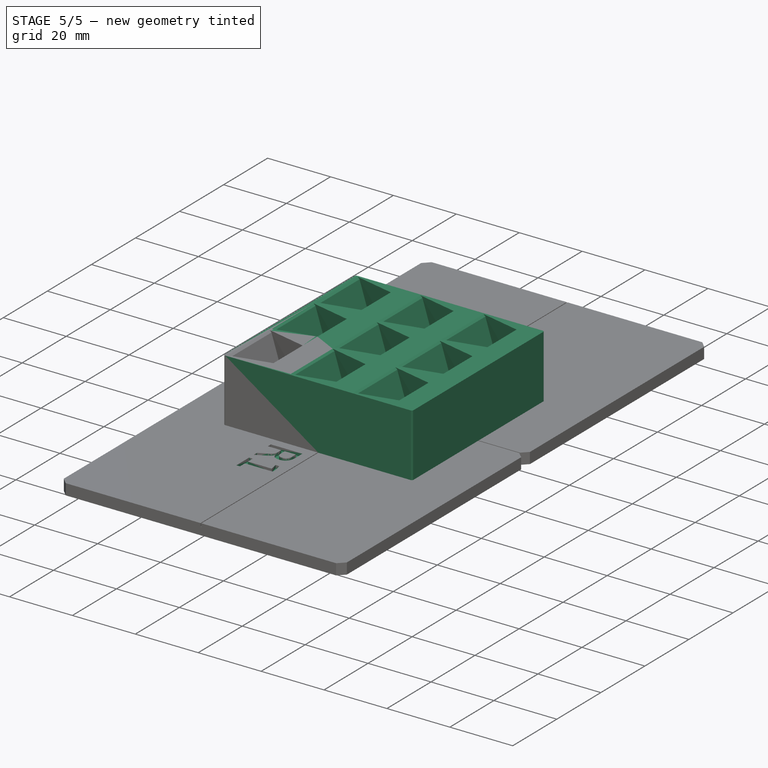
[diagram: stage 5 of 5 — iso view after this stage's code; geometry added in this stage tinted green]
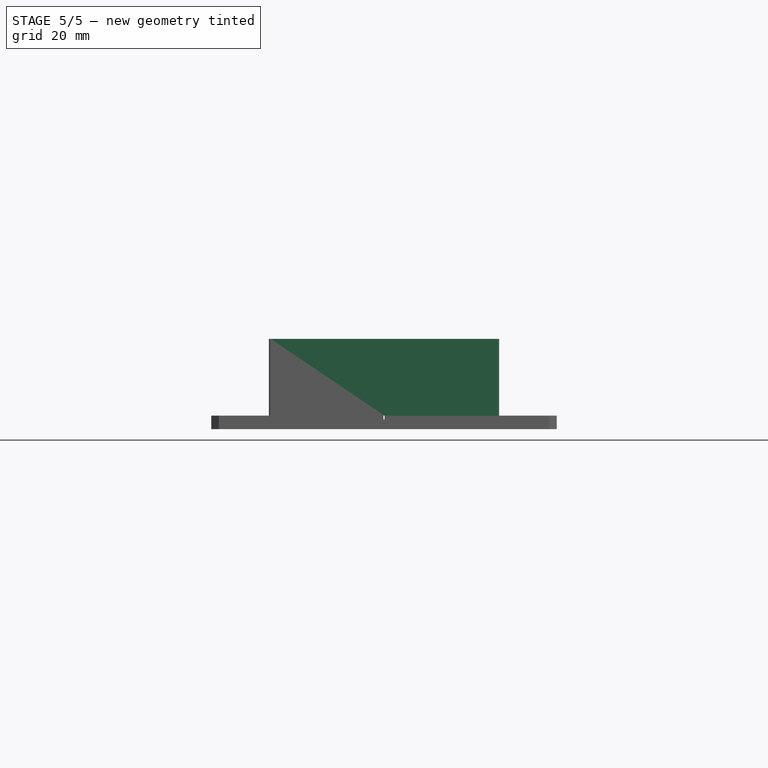
[diagram: stage 5 of 5 — front view after this stage's code; geometry added in this stage tinted green]
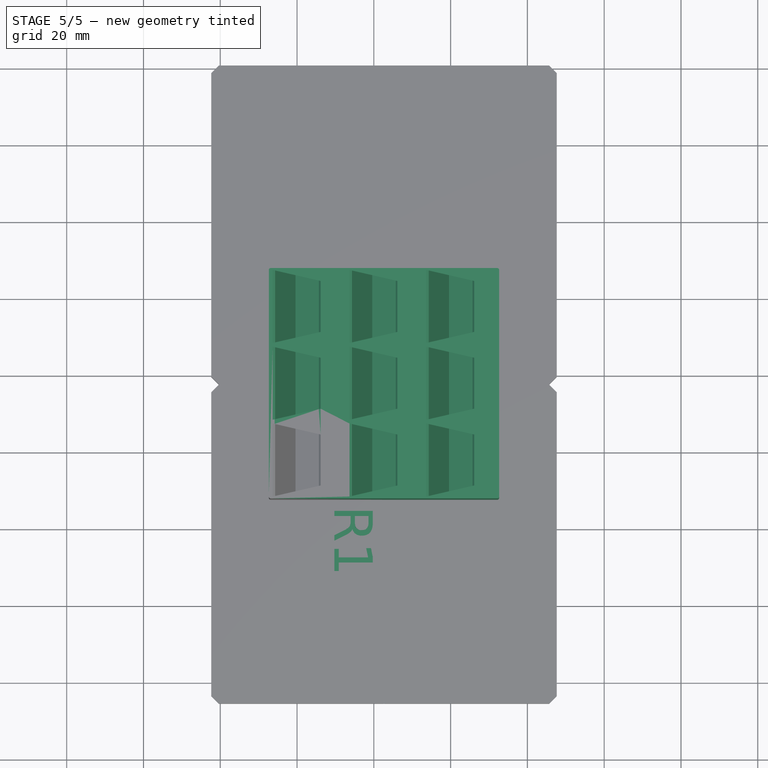
[diagram: stage 5 of 5 — top view after this stage's code; geometry added in this stage tinted green]
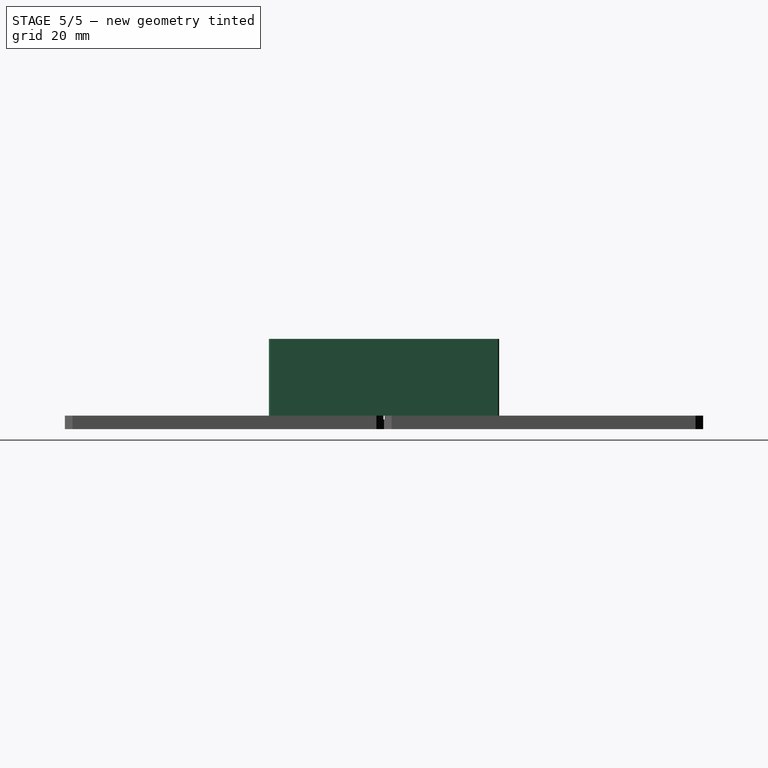
[diagram: stage 5 of 5 — right view after this stage's code; geometry added in this stage tinted green]
FEATURE [PartDesign::LinearPattern] LinearPattern
  BaseFeature = -> Chamfer
  Direction = -> Sketch035 [H_Axis]
  Direction2 = -> Y_Axis008
  Length = 40
  Length2 = 40
  Mode = 1
  Mode2 = 1
  Occurrences = 3
  Occurrences2 = 3
  Offset = 20
  Offset2 = 20
  Originals = -> [Pad012,Pocket021,AdditiveLoft,Chamfer]
  Refine = true
  Reversed = true
  Reversed2 = false
  SpacingPattern = [20]
  SpacingPattern2 = [20]
  Spacings = [-1,-1]
  Spacings2 = [-1,-1]
  Suppressed = false
  TransformMode = 0
FEATURE [PartDesign::Fillet] Fillet002
  Base = -> LinearPattern [Edge333,Edge235,Edge336,Edge236]
  BaseFeature = -> LinearPattern
  Radius = 0.5
  Refine = true
  SupportTransform = false
  Suppressed = false
  UseAllEdges = false
FEATURE [Part::Part2DObjectPython] ShapeString  # Draft 2D object (typed FeaturePython)
  FontFile = <path>
  Fuse = false
  Justification = 6
  JustificationReference = 0
  KeepLeftMargin = false
  MakeFace = true
  ObliqueAngle = 0
  Placement = pos=(49.729,104.813,2) rot=(0,0,1;4.71239rad)
  ScaleToSize = true
  Size = 10
  String = R1
  Tracking = 0
  expr: String = <<Data>>.rowName
FEATURE [PartDesign::Pocket] Pocket022
  BaseFeature = -> Fillet002
  Direction = (0,0,-1)
  Length = 1
  Length2 = 5
  Profile = -> ShapeString
  ReferenceAxis = -> ShapeString [N_Axis]
  Refine = true
  SideType = 0
  Suppressed = false
  Type = 0
  Type2 = 0
FEATURE [PartDesign::Body] Body008  label="Center Fixture"
  AllowCompound = false
  Group = -> [Binder,Sketch030,Sketch034,Pad011,Pocket,Sketch,Pad012,DatumPlane,Sketch035,Pocket021,Sketch036,Sketch037,AdditiveLoft,Chamfer,LinearPattern,Fillet002,ShapeString,Pocket022]
  Origin = -> Origin016
  Row = 0
  Tip = -> Pocket022
  expr: .Row.Enum = Spreadsheet.cells[<<A3:|>>]
note: 1 file-system path scrubbed to <path> (originals preserved in the JSON sidecar)
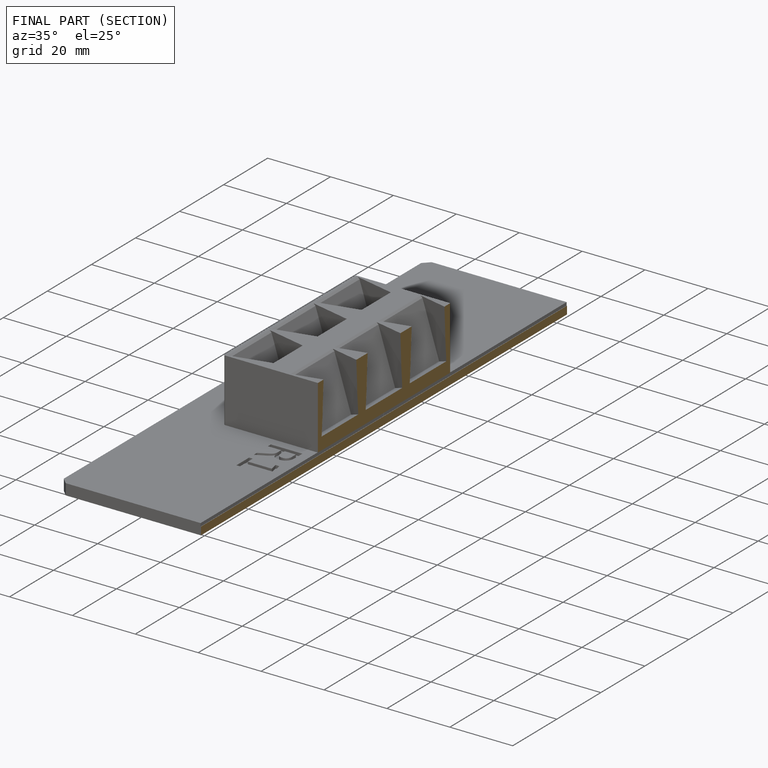
[diagram: finished part — half-section view (interior)]
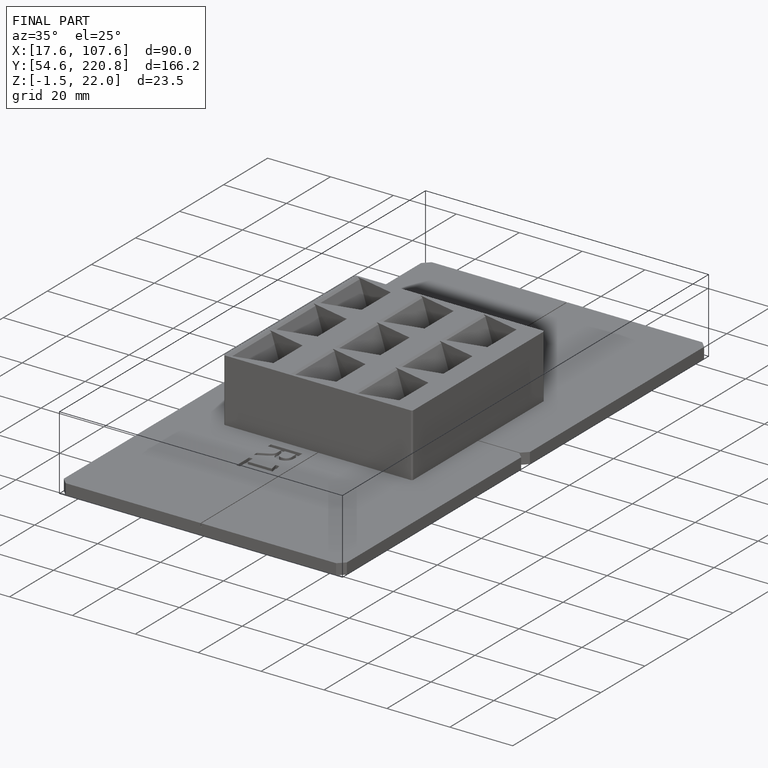
[diagram: finished part — iso view with bounding-box wireframe]
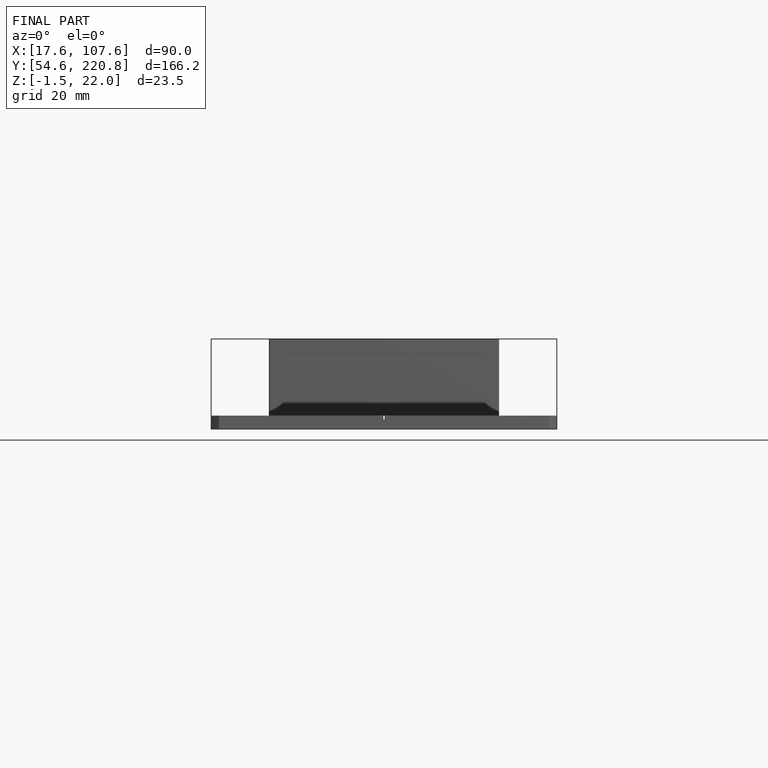
[diagram: finished part — front view with bounding-box wireframe]
